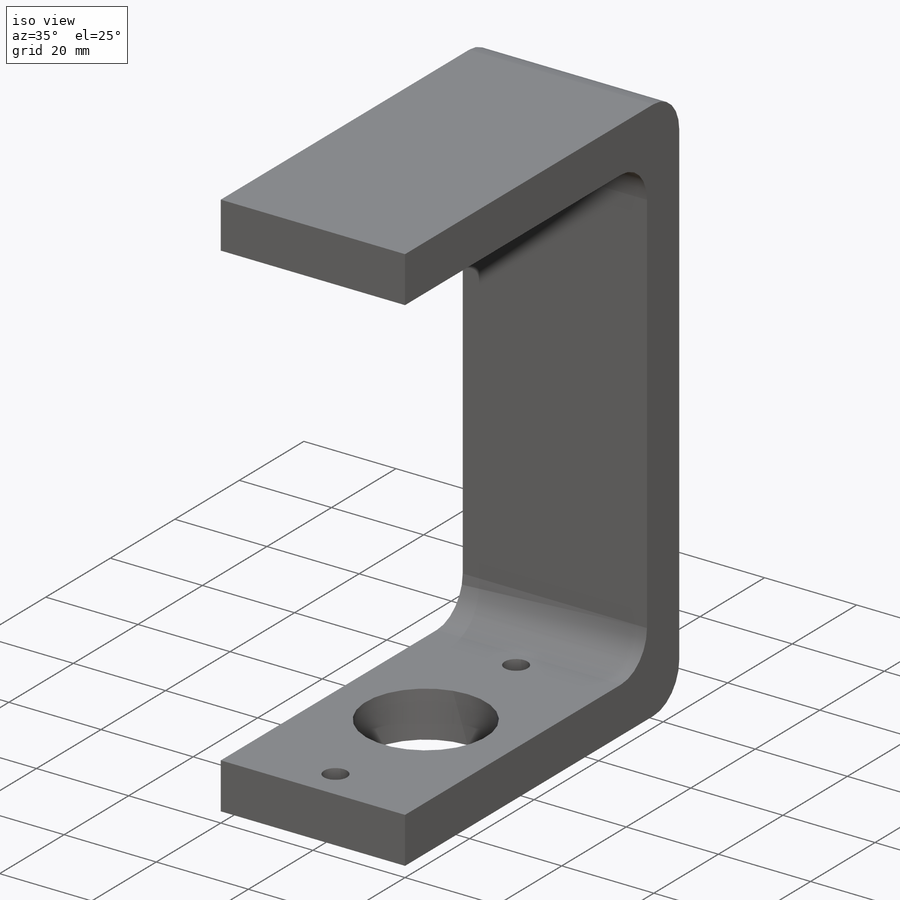
[diagram: iso view]
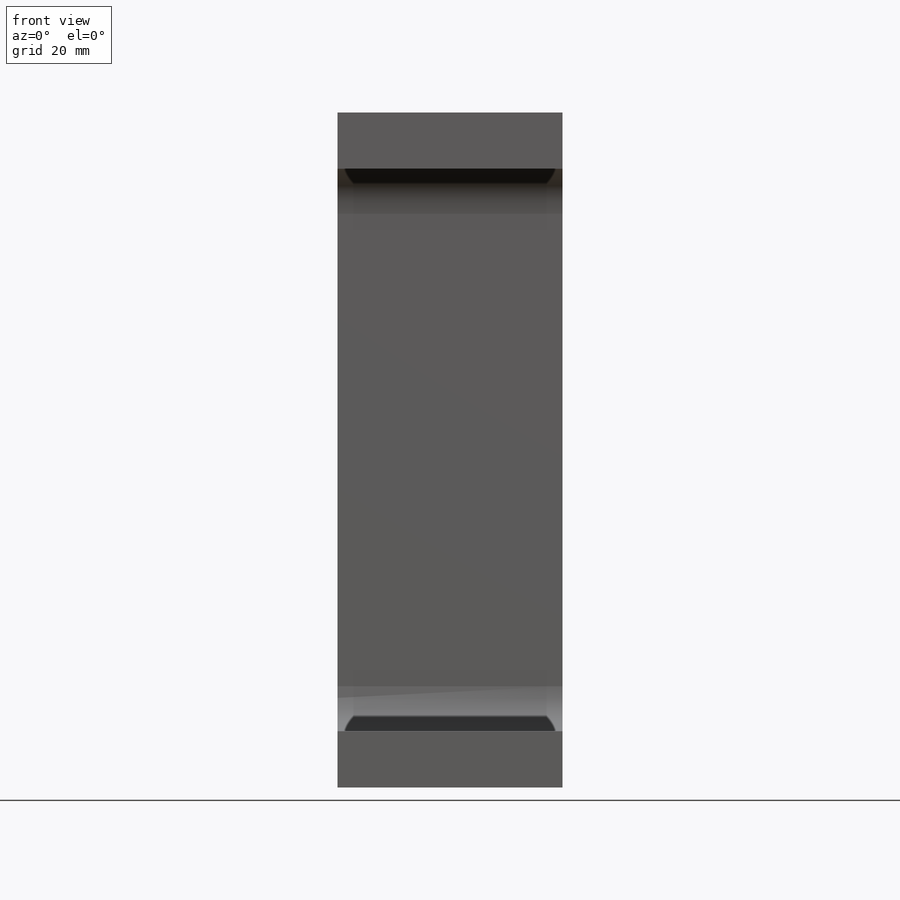
[diagram: front view]
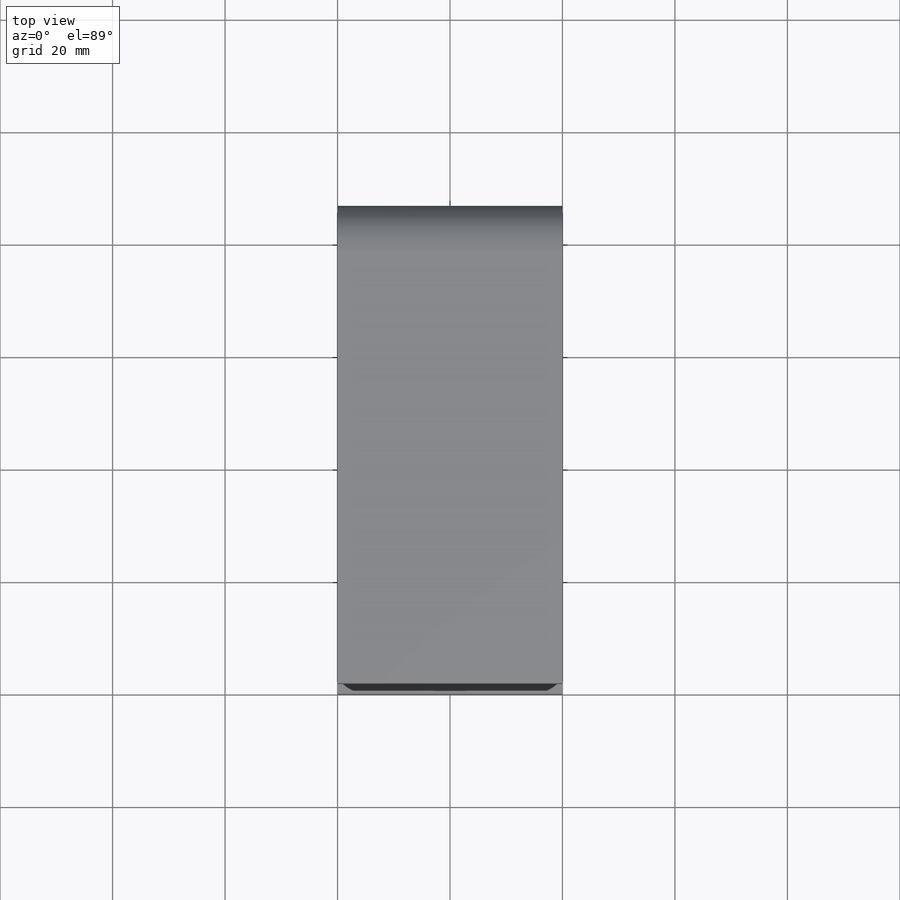
[diagram: top view]
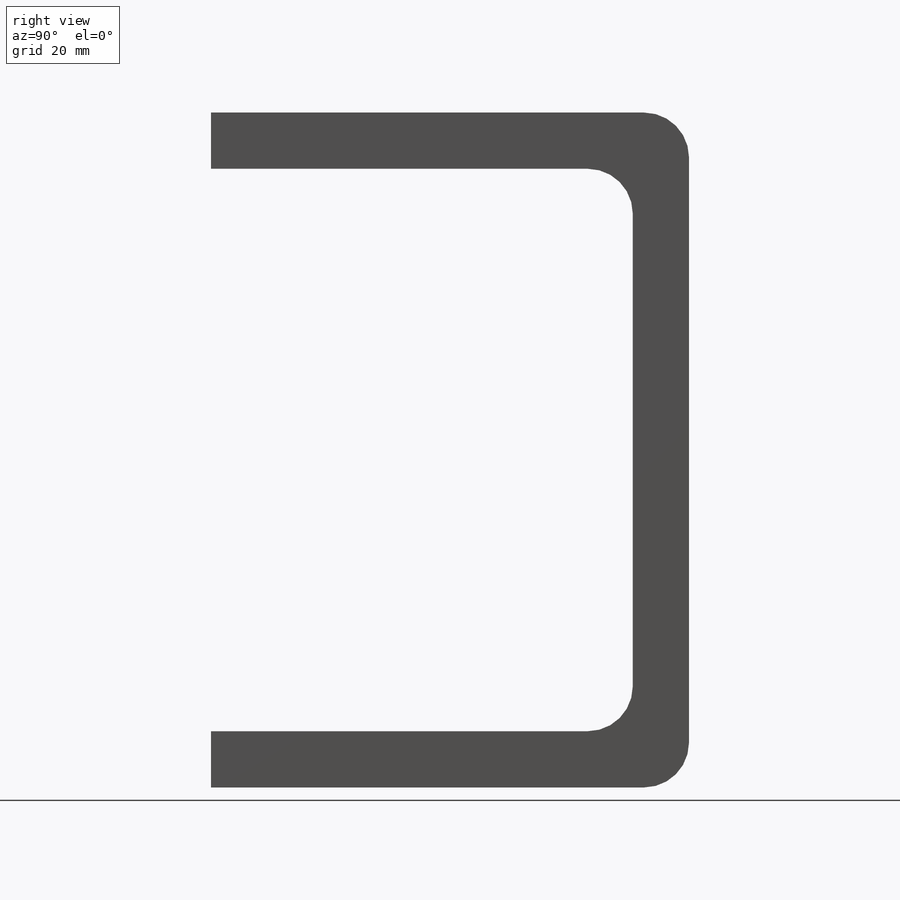
[diagram: right view]
SOLIDWORKS PART (.sldprt)
format: sldprt  version: not decoded by parser v0  size: 241,664 bytes
history: native  units: mm
features: sketch x4, plane x3, thread x2, material x1, extrude x1, cut_extrude x1, hole x1 (+10 scaffold rows collapsed)
feature tree (23):
  scaffold x10  (default folders/planes/origin — collapsed)
  material  "普通碳钢"
  plane  "前视基准面"
  plane  "上视基准面"
  plane  "右视基准面"
  sketch  "草图1"  dims[c1.D7=8.0mm c1.D1=85.0mm c1.D2=75.0mm c1.D3=10.0mm c1.D4=20.0mm c1.D5=100.0mm c1.D6=10.0mm c2.D4=15.0mm]
  extrude  "凸台-拉伸1"  Depth=40mm
  sketch  "草图5"  dims[c1.D1=26.0mm c1.D3=56.0mm c2.D1=~0.154951mm c2.D2=35.0mm]
  cut_extrude  "切除-拉伸1"  [1 undecoded]
  hole  "M6 螺纹孔1"  [1 undecoded]
  sketch  "3D草图1"
  thread  "孔螺蚊线1"  Diameter=6mm  [1 undecoded]
  thread  "孔螺蚊线2"  Diameter=6mm  [1 undecoded]
  sketch  "草图6"  dims[hole-wizard template sketch: 59 standard entries collapsed; hole parameters kept: c18.通孔螺纹孔钻头直径=5.0mm c18.通孔螺纹孔钻头深度=10.0mm]
decode coverage: 6 of 9 modeling features carry decoded parameters
note: ~ marks probable driven/reference dimensions
note: 4 parameter values undecoded
note: suppression state not decoded; provenance and decode notes live in map.json
